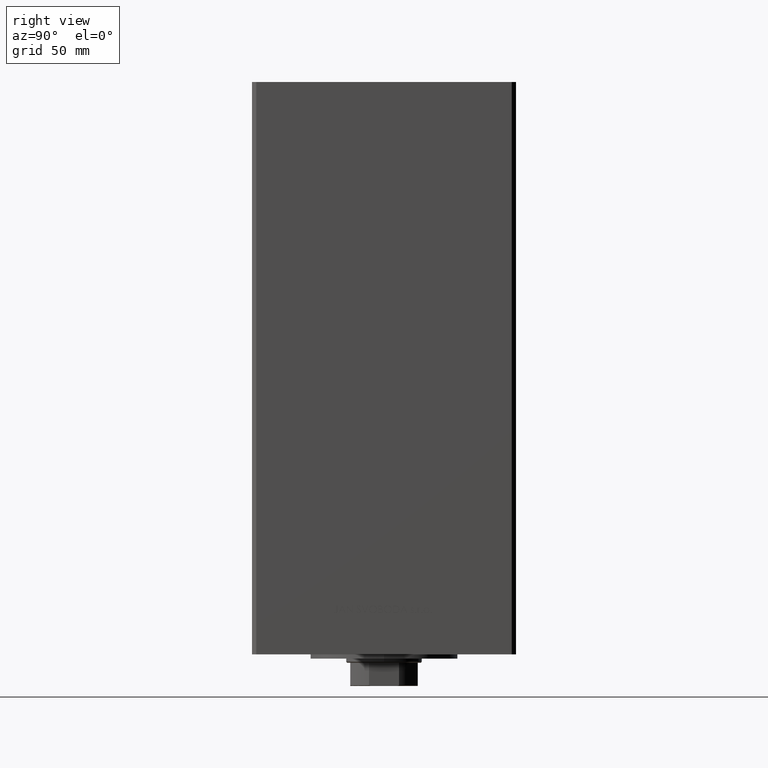
[diagram: clean part render]
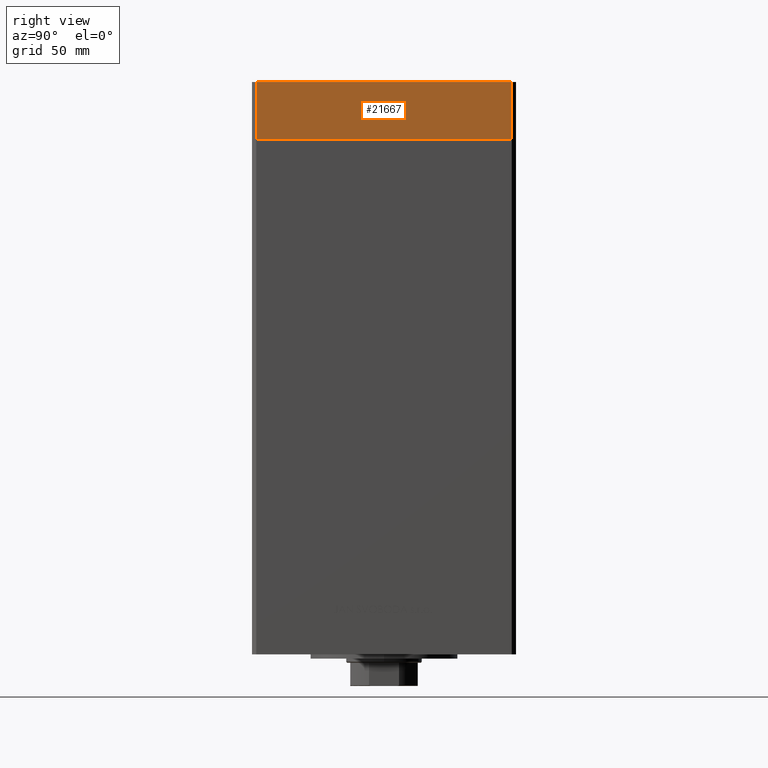
[diagram: same view with one face highlighted and labeled with its STEP entity id]
A machine part, right view. The second image highlights one B-rep face of the part: STEP entity #21667.
In plain terms, the highlighted planar face has unit normal (1, 0, 0).
Its self-contained STEP definition (entity closure, byte-faithful):
#427 = DIRECTION ( 'NONE',  ( 0.000000000000000000, 0.000000000000000000, 1.000000000000000000 ) ) ;
#1360 = CARTESIAN_POINT ( 'NONE',  ( 75.00000000000001421, -60.50000000000000711, -27.00000000000000000 ) ) ;
#2938 = VECTOR ( 'NONE', #28605, 1000.000000000000000 ) ;
#4143 = VERTEX_POINT ( 'NONE', #22211 ) ;
#4289 = CARTESIAN_POINT ( 'NONE',  ( 75.00000000000001421, -60.50000000000000711, -27.00000000000000000 ) ) ;
#4422 = CARTESIAN_POINT ( 'NONE',  ( 75.00000000000001421, -60.50000000000000711, 0.000000000000000000 ) ) ;
#4662 = LINE ( 'NONE', #4422, #9582 ) ;
#6149 = EDGE_CURVE ( 'NONE', #47737, #4143, #12673, .T. ) ;
#8906 = ORIENTED_EDGE ( 'NONE', *, *, #43693, .F. ) ;
#9293 = LINE ( 'NONE', #1360, #2938 ) ;
#9582 = VECTOR ( 'NONE', #20020, 1000.000000000000000 ) ;
#12225 = DIRECTION ( 'NONE',  ( 1.000000000000000000, 6.881547673296424104E-16, -0.000000000000000000 ) ) ;
#12673 = LINE ( 'NONE', #31239, #32292 ) ;
#15650 = VERTEX_POINT ( 'NONE', #40558 ) ;
#15938 = FACE_OUTER_BOUND ( 'NONE', #24289, .T. ) ;
#16018 = LINE ( 'NONE', #23694, #40480 ) ;
#19766 = CARTESIAN_POINT ( 'NONE',  ( 75.00000000000001421, -60.50000000000000711, 0.000000000000000000 ) ) ;
#20020 = DIRECTION ( 'NONE',  ( -6.881547673296424104E-16, 1.000000000000000000, 0.000000000000000000 ) ) ;
#21667 = ADVANCED_FACE ( 'NONE', ( #15938 ), #26841, .T. ) ;
#22211 = CARTESIAN_POINT ( 'NONE',  ( 74.99999999999992895, 60.50000000000002842, -27.00000000000000000 ) ) ;
#22248 = EDGE_CURVE ( 'NONE', #32347, #15650, #4662, .T. ) ;
#22986 = ORIENTED_EDGE ( 'NONE', *, *, #25888, .T. ) ;
#23694 = CARTESIAN_POINT ( 'NONE',  ( 74.99999999999992895, 60.50000000000002842, -27.00000000000000000 ) ) ;
#24289 = EDGE_LOOP ( 'NONE', ( #37148, #8906, #34181, #22986 ) ) ;
#25888 = EDGE_CURVE ( 'NONE', #4143, #15650, #16018, .T. ) ;
#26596 = DIRECTION ( 'NONE',  ( -6.881547673296424104E-16, 1.000000000000000000, 0.000000000000000000 ) ) ;
#26841 = PLANE ( 'NONE',  #42029 ) ;
#28605 = DIRECTION ( 'NONE',  ( 0.000000000000000000, 0.000000000000000000, 1.000000000000000000 ) ) ;
#31239 = CARTESIAN_POINT ( 'NONE',  ( 75.00000000000001421, -60.50000000000000711, -27.00000000000000000 ) ) ;
#32292 = VECTOR ( 'NONE', #46322, 1000.000000000000000 ) ;
#32347 = VERTEX_POINT ( 'NONE', #19766 ) ;
#34181 = ORIENTED_EDGE ( 'NONE', *, *, #6149, .T. ) ;
#37148 = ORIENTED_EDGE ( 'NONE', *, *, #22248, .F. ) ;
#40480 = VECTOR ( 'NONE', #427, 1000.000000000000000 ) ;
#40558 = CARTESIAN_POINT ( 'NONE',  ( 74.99999999999992895, 60.50000000000002842, 0.000000000000000000 ) ) ;
#42029 = AXIS2_PLACEMENT_3D ( 'NONE', #4289, #12225, #26596 ) ;
#43693 = EDGE_CURVE ( 'NONE', #47737, #32347, #9293, .T. ) ;
#44321 = CARTESIAN_POINT ( 'NONE',  ( 75.00000000000001421, -60.50000000000000711, -27.00000000000000000 ) ) ;
#46322 = DIRECTION ( 'NONE',  ( -6.881547673296424104E-16, 1.000000000000000000, 0.000000000000000000 ) ) ;
#47737 = VERTEX_POINT ( 'NONE', #44321 ) ;